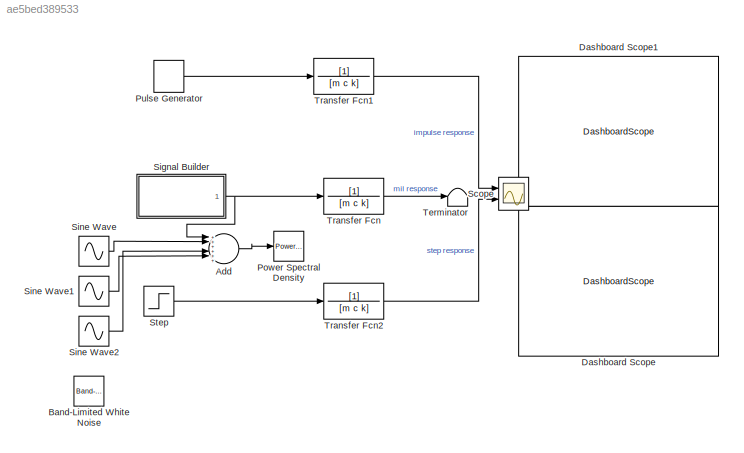
MODEL slx_ae5bed389533
KIND model
CONFIG AbsTol = auto
CONFIG EnableMultiTasking = off
CONFIG FixedStep = auto
CONFIG MaxStep = 0.01
CONFIG MinStep = auto
CONFIG RelTol = 1e-3
CONFIG SampleTimeConstraint = Unconstrained
CONFIG Solver = VariableStepAuto
CONFIG SolverName = VariableStepAuto
CONFIG StartTime = 0.0
CONFIG StopTime = 25
BLOCK [Sum] Add
  InputSameDT = off
  Inputs = ++++++
  OutDataTypeStr = Inherit: Inherit via internal rule
  Ports = [6, 1]
  SaturateOnIntegerOverflow = off
BLOCK [Reference] Band-Limited White Noise  REF=simulink/Sources/Band-Limited
White Noise
  Ports = [0, 1]
  SourceBlock = simulink/Sources/Band-Limited\nWhite Noise
  SourceProductBaseCode = SL
  SourceProductName = Simulink
  SourceType = Band-Limited White Noise.
BLOCK [DashboardScope] Dashboard Scope
  Ymax = 5
  Ymin = 0
BLOCK [DashboardScope] Dashboard Scope1
  Ymax = 5
  Ymin = 0
BLOCK [Reference] Power Spectral Density  REF=simulink_extras/Additional
Sinks/Power Spectral
Density
  Ports = [1]
  SourceBlock = simulink_extras/Additional\nSinks/Power Spectral\nDensity
  SourceProductBaseCode = SL
  SourceProductName = Simulink
  SourceType = Power Spectral Density
BLOCK [DiscretePulseGenerator] Pulse Generator
  Amplitude = 20*9.8
  Period = 100
  Ports = [0, 1]
  PulseType = Time based
  PulseWidth = 0.01
BLOCK [Scope] Scope
  Floating = off
  NumInputPorts = 2
  Ports = [2]
  ScopeSpecificationString = Simulink.scopes.TimeScopeBlockCfg('CurrentConfiguration', extmgr.ConfigurationSet(extmgr.Configuration('Core','General UI',true),extmgr.Configuration('Core','Source UI',true),extmgr.Configuration('Sources','WiredSimulink',true),extmgr.Configuration('Visuals','Time Domain',true,'SerializedDisplays',{struct('MinYLimReal','-0.03504','MaxYLimReal','0.05664','YLabelReal','','MinYLimMag','0.00000','MaxY...<+1379ch>
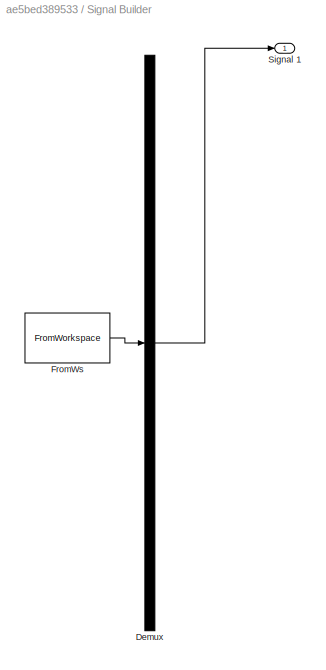
BLOCK [SubSystem] Signal Builder
  ClipboardFcn = sigbuilder_block('clipboard');
  CloseFcn = sigbuilder_block('close');
  ContinueFcn = sigbuilder_block('continue');
  CopyFcn = sigbuilder_block('copy');
  DeleteFcn = sigbuilder_block('delete');
  LoadFcn = sigbuilder_block('load');
  MaskHideContents = on
  ModelCloseFcn = sigbuilder_block('modelClose');
  NameChangeFcn = sigbuilder_block('namechange');
  OpenFcn = sigbuilder_block('open',[225.6 120 550.8 400.2 ]);
  PauseFcn = sigbuilder_block('pause');
  Ports = [0, 1]
  PreSaveFcn = sigbuilder_block('preSave');
  RequestExecContextInheritance = off
  StartFcn = sigbuilder_block('start');
  StopFcn = sigbuilder_block('stop');
  Tag = STV Subsys
BLOCK [Demux] Signal Builder/Demux
  Outputs = 1
  Ports = [1, 1]
  Tag = STV Demux
BLOCK [FromWorkspace] Signal Builder/FromWs
  SampleTime = 0
  Tag = STV FromWs
  VariableName = tuvar
  ZeroCross = on
BLOCK [Outport] Signal Builder/Signal 1
  IconDisplay = Port number
  Tag = STV Outport
BLOCK [Sin] Sine Wave
  Frequency = 300
  Ports = [0, 1]
  SampleTime = 0
BLOCK [Sin] Sine Wave1
  Frequency = 20
  Ports = [0, 1]
  SampleTime = 0
BLOCK [Sin] Sine Wave2
  Frequency = 200
  Ports = [0, 1]
  SampleTime = 0
BLOCK [Step] Step
  After = 2
  SampleTime = 0
  Time = 0
BLOCK [Terminator] Terminator
BLOCK [TransferFcn] Transfer Fcn
  Denominator = [m c k]
BLOCK [TransferFcn] Transfer Fcn1
  Denominator = [m c k]
BLOCK [TransferFcn] Transfer Fcn2
  Denominator = [m c k]
LINE Add:1 -> Power Spectral Density:1
LINE Pulse Generator:1 -> Transfer Fcn1:1
NET Signal Builder:1 -> Add:1, Transfer Fcn:1
LINE Sine Wave1:1 -> Add:5
LINE Sine Wave2:1 -> Add:4
LINE Sine Wave:1 -> Add:2
LINE Step:1 -> Transfer Fcn2:1
LINE Transfer Fcn1:1 -> Scope:1
LINE Transfer Fcn2:1 -> Scope:2
LINE Transfer Fcn:1 -> Terminator:1
note: NET lines group one-source signal fan-out (src -> all destinations, sorted); 1:1 wires keep LINE
